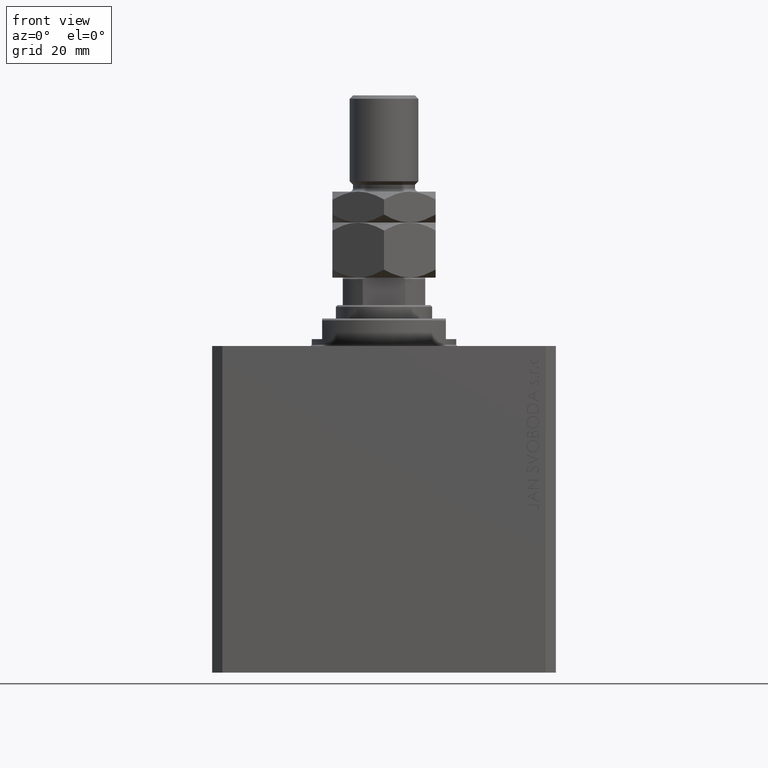
[diagram: clean part render]
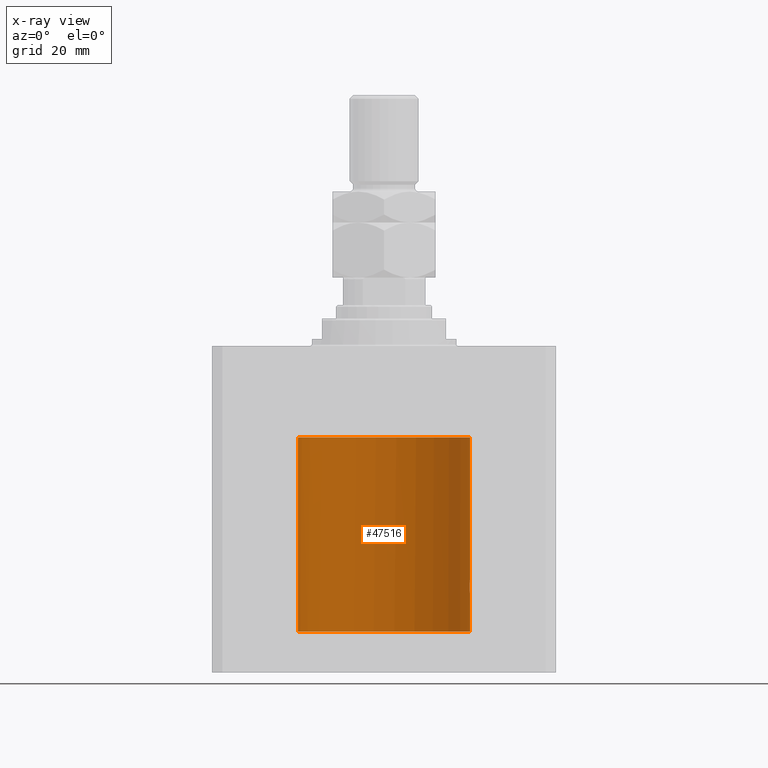
[diagram: x-ray — body ghosted, one internal face saturated and labeled with its STEP entity id]
A machine part, front view, then the same camera in x-ray: the body is ghosted and one INTERNAL B-rep face — a face not visible from any outside direction — is saturated and labeled: STEP entity #47516.
In plain terms, the highlighted cylindrical surface (partial cylindrical patch) has radius 25 mm, axis along (0, 0, 1).
Its self-contained STEP definition (entity closure, byte-faithful):
#892 = CYLINDRICAL_SURFACE ( 'NONE', #42077, 25.00000000000000000 ) ;
#1483 = VECTOR ( 'NONE', #8127, 1000.000000000000000 ) ;
#1786 = B_SPLINE_CURVE_WITH_KNOTS ( 'NONE', 3,
 ( #8024, #27048, #8280, #23344, #12711, #23592, #9262, #20139, #5069, #35893, #4823, #42584, #42832, #5552, #23829, #9493, #5307, #20856 ),
 .UNSPECIFIED., .F., .F.,
 ( 4, 2, 2, 2, 2, 2, 2, 2, 4 ),
 ( 0.003128423524421375217, 0.003519296810509137119, 0.003910170096596899021, 0.004301043382684660923, 0.004691916668772423693, 0.005082789954860184728, 0.005473663240947946630, 0.005864536527035708532, 0.006255409813123470435 ),
 .UNSPECIFIED. ) ;
#2211 = CARTESIAN_POINT ( 'NONE',  ( 24.92422785753204906, 1.947526681255389525, -70.52444535332155340 ) ) ;
#3725 = CARTESIAN_POINT ( 'NONE',  ( 25.00000000000000000, 0.000000000000000000, -83.10000000000000853 ) ) ;
#3937 = VERTEX_POINT ( 'NONE', #20008 ) ;
#4431 = LINE ( 'NONE', #34531, #1483 ) ;
#4823 = CARTESIAN_POINT ( 'NONE',  ( 24.97045842037802998, 1.219816859706691625, -68.40971381657300299 ) ) ;
#5069 = CARTESIAN_POINT ( 'NONE',  ( 24.95467834240023919, 1.507571193169164436, -68.67914516237102873 ) ) ;
#5307 = CARTESIAN_POINT ( 'NONE',  ( 25.00000000000000000, 0.1305261351234896783, -67.99999999999997158 ) ) ;
#5547 = VERTEX_POINT ( 'NONE', #9448 ) ;
#5552 = CARTESIAN_POINT ( 'NONE',  ( 24.99199530066696795, 0.6440939830361788188, -68.10201906410964057 ) ) ;
#8024 = CARTESIAN_POINT ( 'NONE',  ( 24.91987158875419794, 2.000000000000375255, -70.00000000000000000 ) ) ;
#8127 = DIRECTION ( 'NONE',  ( -0.000000000000000000, -0.000000000000000000, 1.000000000000000000 ) ) ;
#8280 = CARTESIAN_POINT ( 'NONE',  ( 24.92092960952687264, 1.986938806757485132, -69.73699118910587913 ) ) ;
#9262 = CARTESIAN_POINT ( 'NONE',  ( 24.93982559358191153, 1.735040297787688646, -68.99670286233151728 ) ) ;
#9413 = EDGE_CURVE ( 'NONE', #14488, #13995, #1786, .T. ) ;
#9448 = CARTESIAN_POINT ( 'NONE',  ( -25.00000000000000000, 3.061616997868383043E-15, -83.10000000000000853 ) ) ;
#9493 = CARTESIAN_POINT ( 'NONE',  ( 24.99894413130754600, 0.2631018416927612402, -68.01307842488789390 ) ) ;
#10824 = LINE ( 'NONE', #48844, #13608 ) ;
#11741 = FACE_OUTER_BOUND ( 'NONE', #47468, .T. ) ;
#12108 = VERTEX_POINT ( 'NONE', #24203 ) ;
#12327 = ORIENTED_EDGE ( 'NONE', *, *, #33679, .T. ) ;
#12329 = VECTOR ( 'NONE', #45358, 1000.000000000000000 ) ;
#12489 = CARTESIAN_POINT ( 'NONE',  ( 0.000000000000000000, 0.000000000000000000, -26.60000000000000142 ) ) ;
#12595 = CARTESIAN_POINT ( 'NONE',  ( 24.94948532700468391, 1.599156973339999066, -71.22913415249136904 ) ) ;
#12711 = CARTESIAN_POINT ( 'NONE',  ( 24.92790171662583276, 1.897957730269075105, -69.35585098575666052 ) ) ;
#12729 = DIRECTION ( 'NONE',  ( 1.000000000000000000, 0.000000000000000000, 0.000000000000000000 ) ) ;
#13414 = CARTESIAN_POINT ( 'NONE',  ( -25.00000000000000355, 0.2156805908219409651, -26.99999999999999645 ) ) ;
#13608 = VECTOR ( 'NONE', #22674, 1000.000000000000000 ) ;
#13995 = VERTEX_POINT ( 'NONE', #44959 ) ;
#14488 = VERTEX_POINT ( 'NONE', #27618 ) ;
#14939 = EDGE_CURVE ( 'NONE', #37033, #5547, #19628, .T. ) ;
#15341 = DIRECTION ( 'NONE',  ( 0.000000000000000000, 0.000000000000000000, 1.000000000000000000 ) ) ;
#15514 = ORIENTED_EDGE ( 'NONE', *, *, #9413, .T. ) ;
#16201 = DIRECTION ( 'NONE',  ( -0.000000000000000000, -0.000000000000000000, 1.000000000000000000 ) ) ;
#16316 = CARTESIAN_POINT ( 'NONE',  ( 24.99895171050671294, 0.2622427397369110347, -71.98701522632683236 ) ) ;
#17011 = ORIENTED_EDGE ( 'NONE', *, *, #18141, .T. ) ;
#17615 = CARTESIAN_POINT ( 'NONE',  ( -25.00000000000000000, 3.060241555953638093E-15, -26.99999999999999645 ) ) ;
#18020 = AXIS2_PLACEMENT_3D ( 'NONE', #22756, #15341, #45464 ) ;
#18141 = EDGE_CURVE ( 'NONE', #13995, #23116, #4431, .T. ) ;
#18953 = CARTESIAN_POINT ( 'NONE',  ( -25.00000000000000000, 3.061616997868383043E-15, -83.10000000000000853 ) ) ;
#19628 = CIRCLE ( 'NONE', #18020, 25.00000000000000000 ) ;
#19899 = CARTESIAN_POINT ( 'NONE',  ( 0.000000000000000000, 0.000000000000000000, -83.10000000000000853 ) ) ;
#20008 = CARTESIAN_POINT ( 'NONE',  ( -24.97118339206214088, 1.199999999999987521, -26.59999999999999787 ) ) ;
#20023 = CARTESIAN_POINT ( 'NONE',  ( 24.96516502151963124, 1.322522485723470531, -71.50597235110980421 ) ) ;
#20139 = CARTESIAN_POINT ( 'NONE',  ( 24.94947734723934829, 1.590234439578154468, -68.78011295253190838 ) ) ;
#20259 = CARTESIAN_POINT ( 'NONE',  ( 25.00000000000000000, 3.613683980139323145E-15, -72.00000000000001421 ) ) ;
#20845 = CARTESIAN_POINT ( 'NONE',  ( -24.98680550328683125, 0.8376193197215402453, -26.82896000732461061 ) ) ;
#20856 = CARTESIAN_POINT ( 'NONE',  ( 25.00000000000000000, -1.072061970195355044E-23, -68.00000000000000000 ) ) ;
#21719 = AXIS2_PLACEMENT_3D ( 'NONE', #12489, #42602, #12729 ) ;
#22674 = DIRECTION ( 'NONE',  ( -0.000000000000000000, -0.000000000000000000, 1.000000000000000000 ) ) ;
#22756 = CARTESIAN_POINT ( 'NONE',  ( 0.000000000000000000, 0.000000000000000000, -83.10000000000000853 ) ) ;
#23116 = VERTEX_POINT ( 'NONE', #34021 ) ;
#23344 = CARTESIAN_POINT ( 'NONE',  ( 24.92495585240437350, 1.935777409849491759, -69.48051441220840729 ) ) ;
#23592 = CARTESIAN_POINT ( 'NONE',  ( 24.93533359819881667, 1.797683477752171743, -69.11371245509397454 ) ) ;
#23794 = ORIENTED_EDGE ( 'NONE', *, *, #14939, .F. ) ;
#23829 = CARTESIAN_POINT ( 'NONE',  ( 24.99493190796009046, 0.5194315891213243663, -68.06421314474678752 ) ) ;
#24203 = CARTESIAN_POINT ( 'NONE',  ( -25.00000000000000000, 3.060241555953638093E-15, -26.99999999999999645 ) ) ;
#24244 = VERTEX_POINT ( 'NONE', #43871 ) ;
#24853 = CIRCLE ( 'NONE', #21719, 25.00000000000000000 ) ;
#25357 = B_SPLINE_CURVE_WITH_KNOTS ( 'NONE', 3,
 ( #44256, #28719, #20845, #47477, #13414, #17615 ),
 .UNSPECIFIED., .F., .F.,
 ( 4, 2, 4 ),
 ( 0.000000000000000000, 0.0006408866495840856480, 0.001281773299168171296 ),
 .UNSPECIFIED. ) ;
#26312 = B_SPLINE_CURVE_WITH_KNOTS ( 'NONE', 3,
 ( #20259, #43194, #16316, #47129, #38764, #32309, #42713, #46414, #20023, #12595, #27896, #2211, #47370, #42964 ),
 .UNSPECIFIED., .F., .F.,
 ( 4, 2, 2, 2, 2, 2, 4 ),
 ( 3.511612687242254074E-18, 0.0003910529405526748294, 0.0007821058811053461894, 0.001173158821658017766, 0.001564211762210689343, 0.002346317643316032063, 0.003128423524421375217 ),
 .UNSPECIFIED. ) ;
#26594 = LINE ( 'NONE', #18953, #12329 ) ;
#27048 = CARTESIAN_POINT ( 'NONE',  ( 24.91987158875419439, 2.000000000000375699, -69.86952236750347822 ) ) ;
#27618 = CARTESIAN_POINT ( 'NONE',  ( 24.91987158875419794, 2.000000000000375255, -70.00000000000000000 ) ) ;
#27896 = CARTESIAN_POINT ( 'NONE',  ( 24.93900639076503722, 1.748128916801924504, -71.00595645684244062 ) ) ;
#28719 = CARTESIAN_POINT ( 'NONE',  ( -24.97950800354324485, 1.026770500031154887, -26.72992212497661768 ) ) ;
#31241 = DIRECTION ( 'NONE',  ( 1.000000000000000000, 0.000000000000000000, 0.000000000000000000 ) ) ;
#31527 = EDGE_CURVE ( 'NONE', #37033, #24244, #10824, .T. ) ;
#32309 = CARTESIAN_POINT ( 'NONE',  ( 24.98454161695537223, 0.8873356620645981296, -71.79717267434570260 ) ) ;
#33679 = EDGE_CURVE ( 'NONE', #3937, #12108, #25357, .T. ) ;
#34021 = CARTESIAN_POINT ( 'NONE',  ( 25.00000000000000000, 0.000000000000000000, -26.60000000000000142 ) ) ;
#34531 = CARTESIAN_POINT ( 'NONE',  ( 25.00000000000000000, 0.000000000000000000, -83.10000000000000853 ) ) ;
#35893 = CARTESIAN_POINT ( 'NONE',  ( 24.96525661602875701, 1.320872503675244003, -68.49244428507738292 ) ) ;
#36234 = EDGE_CURVE ( 'NONE', #24244, #14488, #26312, .T. ) ;
#36951 = ORIENTED_EDGE ( 'NONE', *, *, #37940, .T. ) ;
#37033 = VERTEX_POINT ( 'NONE', #3725 ) ;
#37940 = EDGE_CURVE ( 'NONE', #23116, #3937, #24853, .T. ) ;
#38764 = CARTESIAN_POINT ( 'NONE',  ( 24.99196954445030627, 0.6450912151121352966, -71.89764367645020116 ) ) ;
#39963 = ORIENTED_EDGE ( 'NONE', *, *, #40598, .F. ) ;
#40598 = EDGE_CURVE ( 'NONE', #5547, #12108, #26594, .T. ) ;
#42077 = AXIS2_PLACEMENT_3D ( 'NONE', #19899, #16201, #31241 ) ;
#42584 = CARTESIAN_POINT ( 'NONE',  ( 24.98009620012517829, 1.003265033550135854, -68.26494305889431757 ) ) ;
#42602 = DIRECTION ( 'NONE',  ( 0.000000000000000000, 0.000000000000000000, 1.000000000000000000 ) ) ;
#42713 = CARTESIAN_POINT ( 'NONE',  ( 24.98014008684978648, 1.002218476749560327, -71.73569824284065533 ) ) ;
#42832 = CARTESIAN_POINT ( 'NONE',  ( 24.98457651818866765, 0.8863534138924961114, -68.20234421602243913 ) ) ;
#42964 = CARTESIAN_POINT ( 'NONE',  ( 24.91987158875419794, 2.000000000000375255, -70.00000000000000000 ) ) ;
#43194 = CARTESIAN_POINT ( 'NONE',  ( 25.00000000000000355, 0.1322318523520167877, -72.00000000000002842 ) ) ;
#43871 = CARTESIAN_POINT ( 'NONE',  ( 25.00000000000000000, 3.613683980139323145E-15, -72.00000000000001421 ) ) ;
#44256 = CARTESIAN_POINT ( 'NONE',  ( -24.97118339206214088, 1.199999999999987521, -26.59999999999999787 ) ) ;
#44789 = ORIENTED_EDGE ( 'NONE', *, *, #36234, .T. ) ;
#44959 = CARTESIAN_POINT ( 'NONE',  ( 25.00000000000000000, -1.072061970195355044E-23, -68.00000000000000000 ) ) ;
#45358 = DIRECTION ( 'NONE',  ( -0.000000000000000000, -0.000000000000000000, 1.000000000000000000 ) ) ;
#45464 = DIRECTION ( 'NONE',  ( 1.000000000000000000, 0.000000000000000000, 0.000000000000000000 ) ) ;
#46414 = CARTESIAN_POINT ( 'NONE',  ( 24.97046928552373046, 1.219632852334577633, -71.59046721778373978 ) ) ;
#47129 = CARTESIAN_POINT ( 'NONE',  ( 24.99496001540385848, 0.5180074392840622322, -71.93614799461352050 ) ) ;
#47370 = CARTESIAN_POINT ( 'NONE',  ( 24.91987158875419439, 2.000000000000375699, -70.26107520611000723 ) ) ;
#47374 = ORIENTED_EDGE ( 'NONE', *, *, #31527, .T. ) ;
#47468 = EDGE_LOOP ( 'NONE', ( #39963, #23794, #47374, #44789, #15514, #17011, #36951, #12327 ) ) ;
#47477 = CARTESIAN_POINT ( 'NONE',  ( -24.99718407171789991, 0.4276024655076519632, -26.96566959702169086 ) ) ;
#47516 = ADVANCED_FACE ( 'NONE', ( #11741 ), #892, .F. ) ;
#48844 = CARTESIAN_POINT ( 'NONE',  ( 25.00000000000000000, 0.000000000000000000, -83.10000000000000853 ) ) ;